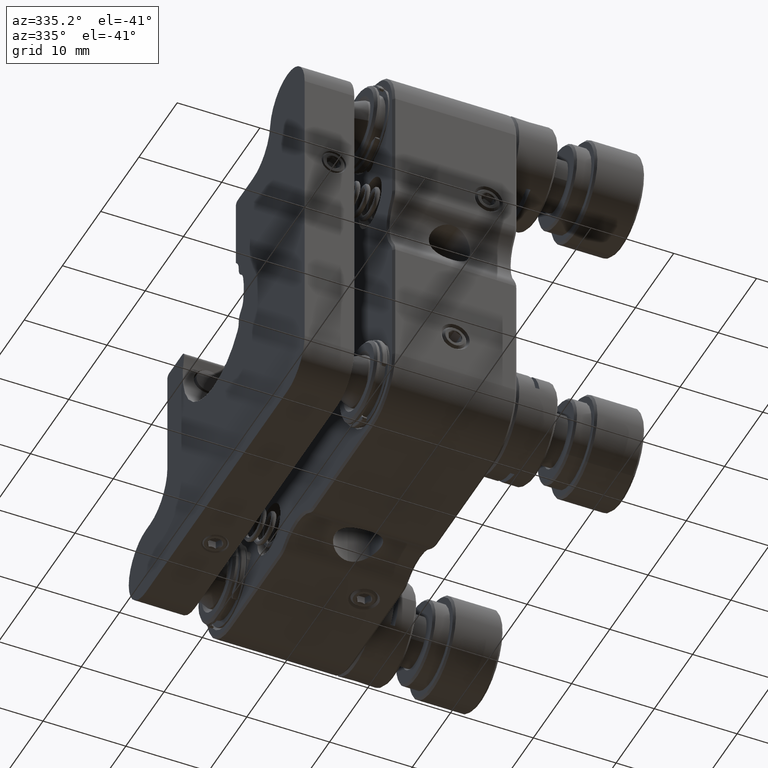
[diagram: clean part render]
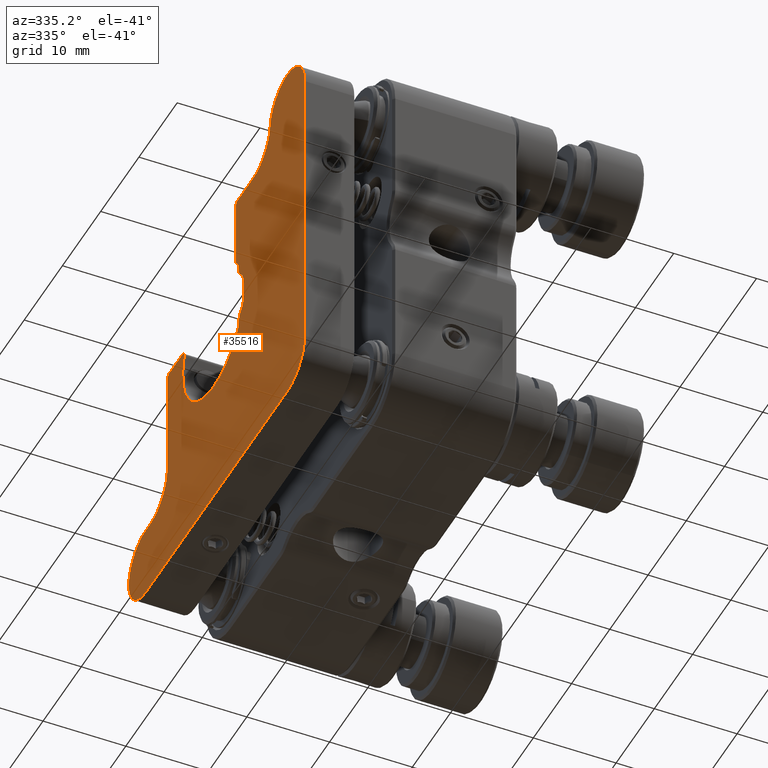
[diagram: same view with one face highlighted and labeled with its STEP entity id]
A machine part, auxiliary view. The second image highlights one B-rep face of the part: STEP entity #35516.
In plain terms, the highlighted planar face has unit normal (-1, -0, 0).
Its self-contained STEP definition (entity closure, byte-faithful):
#74 = DIRECTION ( 'NONE',  ( -1.000000000000000000, -0.0000000000000000000, 0.0000000000000000000 ) ) ;
#246 = CARTESIAN_POINT ( 'NONE',  ( -17.50000000000000000, -22.99999999999997868, -18.50000000000000355 ) ) ;
#247 = EDGE_CURVE ( 'NONE', #3576, #32735, #26787, .T. ) ;
#745 = AXIS2_PLACEMENT_3D ( 'NONE', #20721, #37196, #33951 ) ;
#884 = DIRECTION ( 'NONE',  ( 0.0000000000000000000, 0.0000000000000000000, 1.000000000000000000 ) ) ;
#888 = CARTESIAN_POINT ( 'NONE',  ( -17.50000000000000000, -5.444620444394585590, 2.312724819832328915 ) ) ;
#1101 = CARTESIAN_POINT ( 'NONE',  ( -17.50000000000000000, 12.40000000000000036, 3.499999999999989786 ) ) ;
#1265 = DIRECTION ( 'NONE',  ( 0.0000000000000000000, 0.0000000000000000000, 1.000000000000000000 ) ) ;
#1424 = CIRCLE ( 'NONE', #32610, 1.500000000000000000 ) ;
#1511 = CARTESIAN_POINT ( 'NONE',  ( -17.50000000000000000, -4.260453407709555051, -3.052179225042668254 ) ) ;
#1723 = CARTESIAN_POINT ( 'NONE',  ( -17.50000000000000000, 0.9000000000000005773, 0.8999999999999993561 ) ) ;
#2444 = DIRECTION ( 'NONE',  ( 0.0000000000000000000, 1.156482317317871331E-15, 1.000000000000000000 ) ) ;
#2531 = EDGE_CURVE ( 'NONE', #38846, #5672, #26041, .T. ) ;
#2533 = EDGE_CURVE ( 'NONE', #30262, #39577, #15141, .T. ) ;
#3261 = CARTESIAN_POINT ( 'NONE',  ( -17.50000000000000000, -22.99999999999999289, 18.49999999999998224 ) ) ;
#3285 = CIRCLE ( 'NONE', #6757, 1.500000000000000000 ) ;
#3287 = DIRECTION ( 'NONE',  ( 1.000000000000000000, 0.0000000000000000000, -0.0000000000000000000 ) ) ;
#3474 = VERTEX_POINT ( 'NONE', #6097 ) ;
#3576 = VERTEX_POINT ( 'NONE', #28871 ) ;
#4257 = LINE ( 'NONE', #17711, #8936 ) ;
#4311 = EDGE_CURVE ( 'NONE', #8413, #20928, #3285, .T. ) ;
#4971 = DIRECTION ( 'NONE',  ( 0.0000000000000000000, 0.0000000000000000000, 1.000000000000000000 ) ) ;
#5229 = ORIENTED_EDGE ( 'NONE', *, *, #35275, .F. ) ;
#5672 = VERTEX_POINT ( 'NONE', #22273 ) ;
#5691 = CARTESIAN_POINT ( 'NONE',  ( -17.50000000000000000, -9.500000000000000000, 19.49999999999998224 ) ) ;
#5804 = AXIS2_PLACEMENT_3D ( 'NONE', #29242, #42273, #15606 ) ;
#6097 = CARTESIAN_POINT ( 'NONE',  ( -17.50000000000000000, -4.999999999999998224, 6.302777063696042958 ) ) ;
#6108 = CARTESIAN_POINT ( 'NONE',  ( -17.50000000000000000, -6.908763623870256332, 2.638738239793634754 ) ) ;
#6161 = CARTESIAN_POINT ( 'NONE',  ( -17.50000000000000000, 8.992589202474080778, 3.499999999999990230 ) ) ;
#6220 = CARTESIAN_POINT ( 'NONE',  ( -17.50000000000000000, -9.500000000000000000, 14.99999999999998757 ) ) ;
#6453 = LINE ( 'NONE', #19683, #32835 ) ;
#6757 = AXIS2_PLACEMENT_3D ( 'NONE', #1511, #21036, #4971 ) ;
#6761 = CIRCLE ( 'NONE', #31017, 1.499999999999999556 ) ;
#6856 = CARTESIAN_POINT ( 'NONE',  ( -17.50000000000000000, -6.350695263862215612, -1.708144587749314658 ) ) ;
#6891 = CIRCLE ( 'NONE', #31145, 8.000000000000001776 ) ;
#7040 = ORIENTED_EDGE ( 'NONE', *, *, #37874, .T. ) ;
#7063 = EDGE_CURVE ( 'NONE', #13601, #32735, #34689, .T. ) ;
#7185 = DIRECTION ( 'NONE',  ( 0.0000000000000000000, 0.0000000000000000000, 1.000000000000000000 ) ) ;
#7251 = VERTEX_POINT ( 'NONE', #21234 ) ;
#7256 = CIRCLE ( 'NONE', #14893, 0.5000000000000000000 ) ;
#7443 = DIRECTION ( 'NONE',  ( 1.000000000000000000, 0.0000000000000000000, -0.0000000000000000000 ) ) ;
#7455 = AXIS2_PLACEMENT_3D ( 'NONE', #27407, #74, #36305 ) ;
#7458 = EDGE_CURVE ( 'NONE', #38574, #16242, #34227, .T. ) ;
#7576 = AXIS2_PLACEMENT_3D ( 'NONE', #34552, #37598, #10709 ) ;
#7605 = CARTESIAN_POINT ( 'NONE',  ( -17.50000000000000000, 18.50000000000001066, -18.49999999999999645 ) ) ;
#7609 = EDGE_CURVE ( 'NONE', #11549, #16242, #6453, .T. ) ;
#8005 = ORIENTED_EDGE ( 'NONE', *, *, #2531, .F. ) ;
#8117 = ORIENTED_EDGE ( 'NONE', *, *, #38257, .T. ) ;
#8329 = CARTESIAN_POINT ( 'NONE',  ( -17.50000000000000000, 12.90000000000000036, 6.999999999999988454 ) ) ;
#8413 = VERTEX_POINT ( 'NONE', #27479 ) ;
#8748 = VECTOR ( 'NONE', #21770, 1000.000000000000000 ) ;
#8936 = VECTOR ( 'NONE', #40270, 1000.000000000000000 ) ;
#9269 = VECTOR ( 'NONE', #14952, 1000.000000000000000 ) ;
#9385 = VERTEX_POINT ( 'NONE', #35706 ) ;
#9554 = ORIENTED_EDGE ( 'NONE', *, *, #38157, .T. ) ;
#9600 = DIRECTION ( 'NONE',  ( 0.0000000000000000000, 0.0000000000000000000, 1.000000000000000000 ) ) ;
#9617 = CIRCLE ( 'NONE', #35235, 4.500000000000000888 ) ;
#9674 = AXIS2_PLACEMENT_3D ( 'NONE', #39928, #19762, #7185 ) ;
#9788 = EDGE_CURVE ( 'NONE', #7251, #16254, #31219, .T. ) ;
#10201 = AXIS2_PLACEMENT_3D ( 'NONE', #14389, #17859, #31505 ) ;
#10709 = DIRECTION ( 'NONE',  ( 0.0000000000000000000, 0.0000000000000000000, 1.000000000000000000 ) ) ;
#10977 = VECTOR ( 'NONE', #13241, 1000.000000000000000 ) ;
#11025 = ORIENTED_EDGE ( 'NONE', *, *, #39606, .T. ) ;
#11080 = VECTOR ( 'NONE', #1265, 1000.000000000000000 ) ;
#11344 = CARTESIAN_POINT ( 'NONE',  ( -17.50000000000000000, -18.49999999999997158, -23.00000000000000000 ) ) ;
#11549 = VERTEX_POINT ( 'NONE', #3261 ) ;
#12114 = ORIENTED_EDGE ( 'NONE', *, *, #25078, .F. ) ;
#13048 = CARTESIAN_POINT ( 'NONE',  ( -17.50000000000000000, 12.40000000000000036, 3.999999999999989786 ) ) ;
#13241 = DIRECTION ( 'NONE',  ( 0.0000000000000000000, -1.000000000000000000, -7.542275982507857147E-17 ) ) ;
#13287 = PLANE ( 'NONE',  #21907 ) ;
#13601 = VERTEX_POINT ( 'NONE', #22322 ) ;
#13694 = ORIENTED_EDGE ( 'NONE', *, *, #23867, .F. ) ;
#14389 = CARTESIAN_POINT ( 'NONE',  ( -17.50000000000000000, 18.50000000000001066, -18.50000000000000000 ) ) ;
#14397 = AXIS2_PLACEMENT_3D ( 'NONE', #6161, #35880, #22233 ) ;
#14499 = ORIENTED_EDGE ( 'NONE', *, *, #16512, .T. ) ;
#14893 = AXIS2_PLACEMENT_3D ( 'NONE', #1101, #18244, #31256 ) ;
#14898 = ORIENTED_EDGE ( 'NONE', *, *, #39145, .F. ) ;
#14952 = DIRECTION ( 'NONE',  ( 0.0000000000000000000, -1.000000000000000000, 2.297646988048749910E-16 ) ) ;
#14972 = CARTESIAN_POINT ( 'NONE',  ( -17.50000000000000000, -5.758611745519702119, 4.777871790354482506 ) ) ;
#15141 = CIRCLE ( 'NONE', #28964, 1.500000000000000444 ) ;
#15213 = AXIS2_PLACEMENT_3D ( 'NONE', #1723, #22116, #41854 ) ;
#15290 = ORIENTED_EDGE ( 'NONE', *, *, #2533, .T. ) ;
#15606 = DIRECTION ( 'NONE',  ( 0.0000000000000000000, 0.0000000000000000000, 1.000000000000000000 ) ) ;
#15918 = CARTESIAN_POINT ( 'NONE',  ( -17.50000000000000000, -5.444620444394585590, -0.5127248198323300921 ) ) ;
#16184 = ORIENTED_EDGE ( 'NONE', *, *, #25860, .F. ) ;
#16242 = VERTEX_POINT ( 'NONE', #246 ) ;
#16254 = VERTEX_POINT ( 'NONE', #37115 ) ;
#16512 = EDGE_CURVE ( 'NONE', #31654, #26513, #7256, .T. ) ;
#16956 = CARTESIAN_POINT ( 'NONE',  ( -17.50000000000000000, -4.999999999999998224, 14.99999999999998757 ) ) ;
#17711 = CARTESIAN_POINT ( 'NONE',  ( -17.50000000000000000, 23.00000000000001066, -23.00000000000000000 ) ) ;
#17859 = DIRECTION ( 'NONE',  ( -1.000000000000000000, -0.0000000000000000000, 0.0000000000000000000 ) ) ;
#17973 = LINE ( 'NONE', #30776, #11080 ) ;
#18244 = DIRECTION ( 'NONE',  ( -1.000000000000000000, -0.0000000000000000000, 0.0000000000000000000 ) ) ;
#18406 = CARTESIAN_POINT ( 'NONE',  ( -17.50000000000000000, -6.908763623870256332, -0.8387382397936362644 ) ) ;
#18576 = EDGE_CURVE ( 'NONE', #19944, #37455, #1424, .T. ) ;
#19199 = CIRCLE ( 'NONE', #30273, 4.499999999999997335 ) ;
#19324 = VERTEX_POINT ( 'NONE', #31264 ) ;
#19683 = CARTESIAN_POINT ( 'NONE',  ( -17.50000000000000000, -22.99999999999997513, -23.00000000000000000 ) ) ;
#19762 = DIRECTION ( 'NONE',  ( -1.000000000000000000, 0.0000000000000000000, 0.0000000000000000000 ) ) ;
#19944 = VERTEX_POINT ( 'NONE', #18406 ) ;
#20030 = DIRECTION ( 'NONE',  ( -1.000000000000000000, 0.0000000000000000000, 0.0000000000000000000 ) ) ;
#20386 = DIRECTION ( 'NONE',  ( 1.000000000000000000, 0.0000000000000000000, -0.0000000000000000000 ) ) ;
#20460 = DIRECTION ( 'NONE',  ( 0.0000000000000000000, 0.0000000000000000000, -1.000000000000000000 ) ) ;
#20620 = DIRECTION ( 'NONE',  ( 0.0000000000000000000, 0.0000000000000000000, 1.000000000000000000 ) ) ;
#20651 = ORIENTED_EDGE ( 'NONE', *, *, #28602, .F. ) ;
#20721 = CARTESIAN_POINT ( 'NONE',  ( -17.50000000000000000, -5.499999999999999112, 14.49999999999998757 ) ) ;
#20901 = ORIENTED_EDGE ( 'NONE', *, *, #41585, .F. ) ;
#20928 = VERTEX_POINT ( 'NONE', #26827 ) ;
#20946 = CARTESIAN_POINT ( 'NONE',  ( -17.50000000000000000, -5.451327271027143873, 5.764220584667897995 ) ) ;
#21036 = DIRECTION ( 'NONE',  ( 1.000000000000000000, 0.0000000000000000000, -0.0000000000000000000 ) ) ;
#21074 = ORIENTED_EDGE ( 'NONE', *, *, #22524, .T. ) ;
#21234 = CARTESIAN_POINT ( 'NONE',  ( -17.50000000000000000, -5.499999999999999112, 14.99999999999998757 ) ) ;
#21770 = DIRECTION ( 'NONE',  ( -0.0000000000000000000, 1.652117596168388989E-16, 1.000000000000000000 ) ) ;
#21907 = AXIS2_PLACEMENT_3D ( 'NONE', #25880, #32177, #9600 ) ;
#22116 = DIRECTION ( 'NONE',  ( -1.000000000000000000, 0.0000000000000000000, 0.0000000000000000000 ) ) ;
#22220 = ORIENTED_EDGE ( 'NONE', *, *, #4311, .T. ) ;
#22233 = DIRECTION ( 'NONE',  ( 0.0000000000000000000, 0.0000000000000000000, 1.000000000000000000 ) ) ;
#22273 = CARTESIAN_POINT ( 'NONE',  ( -17.50000000000000000, -18.49999999999998934, 22.99999999999998224 ) ) ;
#22322 = CARTESIAN_POINT ( 'NONE',  ( -17.50000000000000000, 18.50000000000001066, -13.99999999999999467 ) ) ;
#22460 = VERTEX_POINT ( 'NONE', #29894 ) ;
#22524 = EDGE_CURVE ( 'NONE', #11549, #5672, #9617, .T. ) ;
#22648 = DIRECTION ( 'NONE',  ( 0.0000000000000000000, -1.000000000000000000, 1.314184451497580766E-16 ) ) ;
#22819 = DIRECTION ( 'NONE',  ( 0.0000000000000000000, 0.0000000000000000000, -1.000000000000000000 ) ) ;
#22869 = CARTESIAN_POINT ( 'NONE',  ( -17.50000000000000000, 28.00000000000001066, 3.999999999999988010 ) ) ;
#23507 = CARTESIAN_POINT ( 'NONE',  ( -17.50000000000000000, -7.256770083329848298, 4.703564355666299157 ) ) ;
#23867 = EDGE_CURVE ( 'NONE', #30262, #3474, #36659, .T. ) ;
#23887 = DIRECTION ( 'NONE',  ( 0.0000000000000000000, 0.0000000000000000000, 1.000000000000000000 ) ) ;
#24215 = CIRCLE ( 'NONE', #9674, 1.500000000000000222 ) ;
#24640 = EDGE_CURVE ( 'NONE', #37455, #8413, #24215, .T. ) ;
#24911 = CARTESIAN_POINT ( 'NONE',  ( -17.50000000000000000, -13.97213595499957606, 18.99999999999998224 ) ) ;
#25026 = ORIENTED_EDGE ( 'NONE', *, *, #40557, .F. ) ;
#25078 = EDGE_CURVE ( 'NONE', #9385, #20928, #6891, .T. ) ;
#25512 = ORIENTED_EDGE ( 'NONE', *, *, #7458, .T. ) ;
#25601 = VERTEX_POINT ( 'NONE', #32740 ) ;
#25860 = EDGE_CURVE ( 'NONE', #3474, #16254, #17973, .T. ) ;
#25880 = CARTESIAN_POINT ( 'NONE',  ( -17.50000000000000000, -8.873843002484312809E-16, -9.061778158994943713E-15 ) ) ;
#25953 = VERTEX_POINT ( 'NONE', #38769 ) ;
#26041 = LINE ( 'NONE', #29493, #10977 ) ;
#26225 = CARTESIAN_POINT ( 'NONE',  ( -17.50000000000000000, 17.39999999999999858, -13.99999999999999467 ) ) ;
#26264 = VERTEX_POINT ( 'NONE', #6220 ) ;
#26513 = VERTEX_POINT ( 'NONE', #37216 ) ;
#26640 = DIRECTION ( 'NONE',  ( 0.0000000000000000000, 0.0000000000000000000, 1.000000000000000000 ) ) ;
#26678 = EDGE_CURVE ( 'NONE', #19324, #38671, #33991, .T. ) ;
#26787 = CIRCLE ( 'NONE', #39236, 4.500000000000000000 ) ;
#26827 = CARTESIAN_POINT ( 'NONE',  ( -17.50000000000000000, -5.451327271027143873, -3.964220584667898173 ) ) ;
#27144 = CARTESIAN_POINT ( 'NONE',  ( -17.50000000000000000, 0.9000000000000005773, 0.8999999999999993561 ) ) ;
#27407 = CARTESIAN_POINT ( 'NONE',  ( -17.50000000000000000, -18.44427190999915567, 18.49999999999998224 ) ) ;
#27479 = CARTESIAN_POINT ( 'NONE',  ( -17.50000000000000000, -5.758611745519701230, -2.977871790354484016 ) ) ;
#27550 = CIRCLE ( 'NONE', #14397, 0.4999999999999995559 ) ;
#28356 = CIRCLE ( 'NONE', #15213, 8.000000000000001776 ) ;
#28602 = EDGE_CURVE ( 'NONE', #19944, #38671, #28356, .T. ) ;
#28871 = CARTESIAN_POINT ( 'NONE',  ( -17.50000000000000000, 12.89999999999999680, -9.499999999999991118 ) ) ;
#28964 = AXIS2_PLACEMENT_3D ( 'NONE', #36880, #20386, #33187 ) ;
#29242 = CARTESIAN_POINT ( 'NONE',  ( -17.50000000000000000, -18.49999999999997158, -18.50000000000000000 ) ) ;
#29493 = CARTESIAN_POINT ( 'NONE',  ( -17.50000000000000000, 23.00000000000000711, 22.99999999999998579 ) ) ;
#29894 = CARTESIAN_POINT ( 'NONE',  ( -17.50000000000000000, 18.50000000000001066, -23.00000000000000000 ) ) ;
#29942 = ORIENTED_EDGE ( 'NONE', *, *, #18576, .T. ) ;
#29950 = DIRECTION ( 'NONE',  ( 0.0000000000000000000, -1.000000000000000000, 0.0000000000000000000 ) ) ;
#30262 = VERTEX_POINT ( 'NONE', #20946 ) ;
#30273 = AXIS2_PLACEMENT_3D ( 'NONE', #5691, #36050, #22819 ) ;
#30776 = CARTESIAN_POINT ( 'NONE',  ( -17.50000000000000000, -4.999999999999998224, 3.999999999999992450 ) ) ;
#31017 = AXIS2_PLACEMENT_3D ( 'NONE', #23507, #20030, #20460 ) ;
#31050 = AXIS2_PLACEMENT_3D ( 'NONE', #7605, #38181, #884 ) ;
#31145 = AXIS2_PLACEMENT_3D ( 'NONE', #27144, #41214, #23887 ) ;
#31219 = CIRCLE ( 'NONE', #745, 0.5000000000000004441 ) ;
#31256 = DIRECTION ( 'NONE',  ( 0.0000000000000000000, 0.0000000000000000000, 1.000000000000000000 ) ) ;
#31264 = CARTESIAN_POINT ( 'NONE',  ( -17.50000000000000000, -6.350695263862216500, 3.508144587749313370 ) ) ;
#31505 = DIRECTION ( 'NONE',  ( 0.0000000000000000000, 0.0000000000000000000, 1.000000000000000000 ) ) ;
#31654 = VERTEX_POINT ( 'NONE', #13048 ) ;
#31716 = ORIENTED_EDGE ( 'NONE', *, *, #9788, .T. ) ;
#32177 = DIRECTION ( 'NONE',  ( -1.000000000000000000, -0.0000000000000000000, 0.0000000000000000000 ) ) ;
#32610 = AXIS2_PLACEMENT_3D ( 'NONE', #15918, #3287, #2444 ) ;
#32735 = VERTEX_POINT ( 'NONE', #26225 ) ;
#32740 = CARTESIAN_POINT ( 'NONE',  ( -17.50000000000000000, 8.992589202474079002, 3.999999999999990674 ) ) ;
#32835 = VECTOR ( 'NONE', #32916, 1000.000000000000000 ) ;
#32916 = DIRECTION ( 'NONE',  ( -0.0000000000000000000, 4.525365589504715274E-16, -1.000000000000000000 ) ) ;
#32930 = ORIENTED_EDGE ( 'NONE', *, *, #24640, .T. ) ;
#33108 = CIRCLE ( 'NONE', #31050, 4.500000000000000888 ) ;
#33187 = DIRECTION ( 'NONE',  ( 0.0000000000000000000, 1.156482317317871133E-15, 1.000000000000000000 ) ) ;
#33233 = VERTEX_POINT ( 'NONE', #24911 ) ;
#33426 = LINE ( 'NONE', #16956, #39331 ) ;
#33865 = EDGE_CURVE ( 'NONE', #38574, #22460, #4257, .T. ) ;
#33951 = DIRECTION ( 'NONE',  ( 0.0000000000000000000, 0.0000000000000000000, 1.000000000000000000 ) ) ;
#33991 = CIRCLE ( 'NONE', #41610, 1.500000000000000000 ) ;
#34227 = CIRCLE ( 'NONE', #5804, 4.500000000000000888 ) ;
#34543 = DIRECTION ( 'NONE',  ( 0.0000000000000000000, 0.0000000000000000000, 1.000000000000000000 ) ) ;
#34552 = CARTESIAN_POINT ( 'NONE',  ( -17.50000000000000000, 0.9000000000000005773, 0.8999999999999993561 ) ) ;
#34575 = ORIENTED_EDGE ( 'NONE', *, *, #33865, .F. ) ;
#34689 = LINE ( 'NONE', #37516, #9269 ) ;
#35212 = LINE ( 'NONE', #8329, #8748 ) ;
#35235 = AXIS2_PLACEMENT_3D ( 'NONE', #39866, #39439, #26640 ) ;
#35275 = EDGE_CURVE ( 'NONE', #3576, #26513, #35212, .T. ) ;
#35516 = ADVANCED_FACE ( 'NONE', ( #39099 ), #13287, .T. ) ;
#35562 = ORIENTED_EDGE ( 'NONE', *, *, #7609, .F. ) ;
#35706 = CARTESIAN_POINT ( 'NONE',  ( -17.50000000000000000, 8.516554543505018060, 3.347058823529402094 ) ) ;
#35880 = DIRECTION ( 'NONE',  ( -1.000000000000000000, -0.0000000000000000000, 0.0000000000000000000 ) ) ;
#36050 = DIRECTION ( 'NONE',  ( -1.000000000000000000, 0.0000000000000000000, 0.0000000000000000000 ) ) ;
#36305 = DIRECTION ( 'NONE',  ( 0.0000000000000000000, 0.0000000000000000000, 1.000000000000000000 ) ) ;
#36520 = CIRCLE ( 'NONE', #7455, 4.500000000000000888 ) ;
#36659 = CIRCLE ( 'NONE', #7576, 8.000000000000001776 ) ;
#36880 = CARTESIAN_POINT ( 'NONE',  ( -17.50000000000000000, -4.260453407709555051, 4.852179225042667632 ) ) ;
#37115 = CARTESIAN_POINT ( 'NONE',  ( -17.50000000000000000, -4.999999999999998224, 14.49999999999998757 ) ) ;
#37196 = DIRECTION ( 'NONE',  ( -1.000000000000000000, -0.0000000000000000000, 0.0000000000000000000 ) ) ;
#37216 = CARTESIAN_POINT ( 'NONE',  ( -17.50000000000000000, 12.90000000000000036, 3.499999999999989786 ) ) ;
#37232 = CIRCLE ( 'NONE', #10201, 4.500000000000000888 ) ;
#37455 = VERTEX_POINT ( 'NONE', #6856 ) ;
#37516 = CARTESIAN_POINT ( 'NONE',  ( -17.50000000000000000, 28.00000000000000711, -13.99999999999999645 ) ) ;
#37598 = DIRECTION ( 'NONE',  ( -1.000000000000000000, 0.0000000000000000000, 0.0000000000000000000 ) ) ;
#37874 = EDGE_CURVE ( 'NONE', #9385, #25601, #27550, .T. ) ;
#38016 = VECTOR ( 'NONE', #22648, 1000.000000000000000 ) ;
#38157 = EDGE_CURVE ( 'NONE', #38846, #33233, #36520, .T. ) ;
#38181 = DIRECTION ( 'NONE',  ( -1.000000000000000000, -0.0000000000000000000, 0.0000000000000000000 ) ) ;
#38257 = EDGE_CURVE ( 'NONE', #39577, #19324, #6761, .T. ) ;
#38431 = EDGE_CURVE ( 'NONE', #25953, #22460, #37232, .T. ) ;
#38574 = VERTEX_POINT ( 'NONE', #11344 ) ;
#38671 = VERTEX_POINT ( 'NONE', #6108 ) ;
#38769 = CARTESIAN_POINT ( 'NONE',  ( -17.50000000000000000, 23.00000000000001066, -18.50000000000000000 ) ) ;
#38846 = VERTEX_POINT ( 'NONE', #42547 ) ;
#39099 = FACE_OUTER_BOUND ( 'NONE', #40003, .T. ) ;
#39145 = EDGE_CURVE ( 'NONE', #7251, #26264, #33426, .T. ) ;
#39236 = AXIS2_PLACEMENT_3D ( 'NONE', #40627, #7443, #34543 ) ;
#39331 = VECTOR ( 'NONE', #29950, 1000.000000000000000 ) ;
#39439 = DIRECTION ( 'NONE',  ( -1.000000000000000000, -0.0000000000000000000, 0.0000000000000000000 ) ) ;
#39577 = VERTEX_POINT ( 'NONE', #14972 ) ;
#39606 = EDGE_CURVE ( 'NONE', #13601, #25953, #33108, .T. ) ;
#39866 = CARTESIAN_POINT ( 'NONE',  ( -17.50000000000000000, -18.49999999999999289, 18.49999999999998579 ) ) ;
#39928 = CARTESIAN_POINT ( 'NONE',  ( -17.50000000000000000, -7.256770083329848298, -2.903564355666299779 ) ) ;
#40003 = EDGE_LOOP ( 'NONE', ( #13694, #15290, #8117, #41526, #20651, #29942, #32930, #22220, #12114, #7040, #25026, #14499, #5229, #40599, #41130, #11025, #40159, #34575, #25512, #35562, #21074, #8005, #9554, #20901, #14898, #31716, #16184 ) ) ;
#40159 = ORIENTED_EDGE ( 'NONE', *, *, #38431, .T. ) ;
#40270 = DIRECTION ( 'NONE',  ( -0.0000000000000000000, 1.000000000000000000, -0.0000000000000000000 ) ) ;
#40557 = EDGE_CURVE ( 'NONE', #31654, #25601, #42602, .T. ) ;
#40578 = DIRECTION ( 'NONE',  ( 1.000000000000000000, 0.0000000000000000000, -0.0000000000000000000 ) ) ;
#40599 = ORIENTED_EDGE ( 'NONE', *, *, #247, .T. ) ;
#40627 = CARTESIAN_POINT ( 'NONE',  ( -17.50000000000000000, 17.39999999999999858, -9.499999999999992895 ) ) ;
#41130 = ORIENTED_EDGE ( 'NONE', *, *, #7063, .F. ) ;
#41214 = DIRECTION ( 'NONE',  ( -1.000000000000000000, 0.0000000000000000000, 0.0000000000000000000 ) ) ;
#41526 = ORIENTED_EDGE ( 'NONE', *, *, #26678, .T. ) ;
#41585 = EDGE_CURVE ( 'NONE', #26264, #33233, #19199, .T. ) ;
#41610 = AXIS2_PLACEMENT_3D ( 'NONE', #888, #40578, #20620 ) ;
#41854 = DIRECTION ( 'NONE',  ( 0.0000000000000000000, 0.0000000000000000000, 1.000000000000000000 ) ) ;
#42273 = DIRECTION ( 'NONE',  ( -1.000000000000000000, -0.0000000000000000000, 0.0000000000000000000 ) ) ;
#42547 = CARTESIAN_POINT ( 'NONE',  ( -17.50000000000000000, -18.44427190999915922, 22.99999999999998224 ) ) ;
#42602 = LINE ( 'NONE', #22869, #38016 ) ;